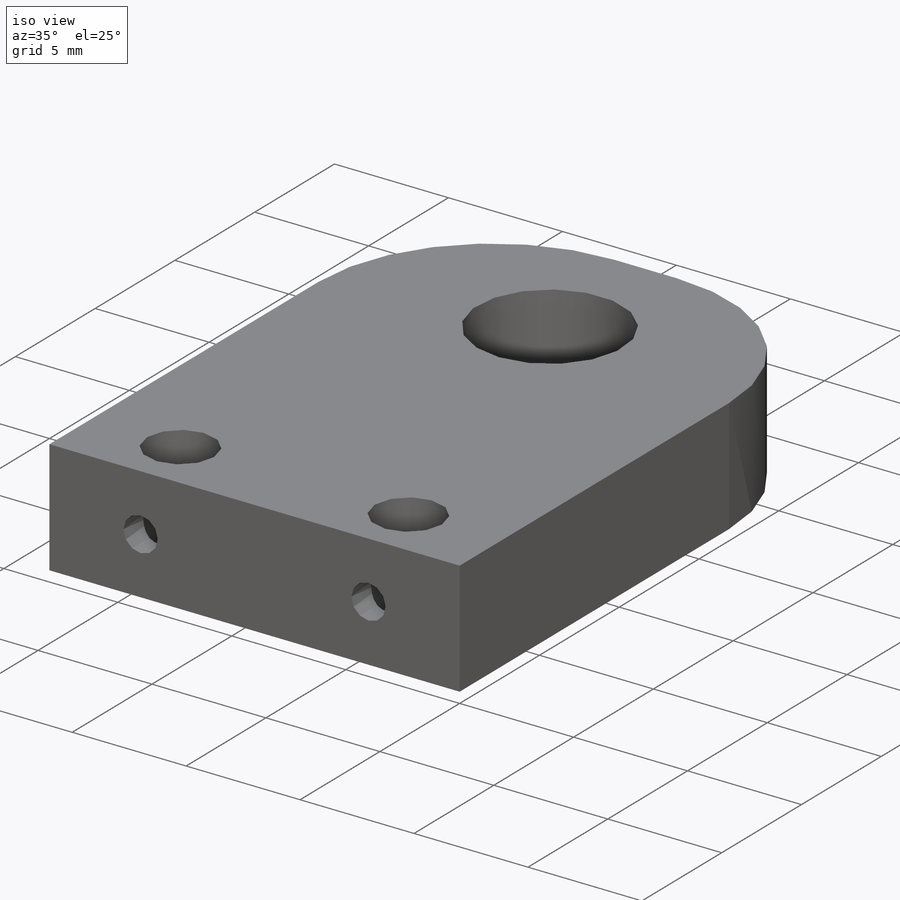
[diagram: iso view]
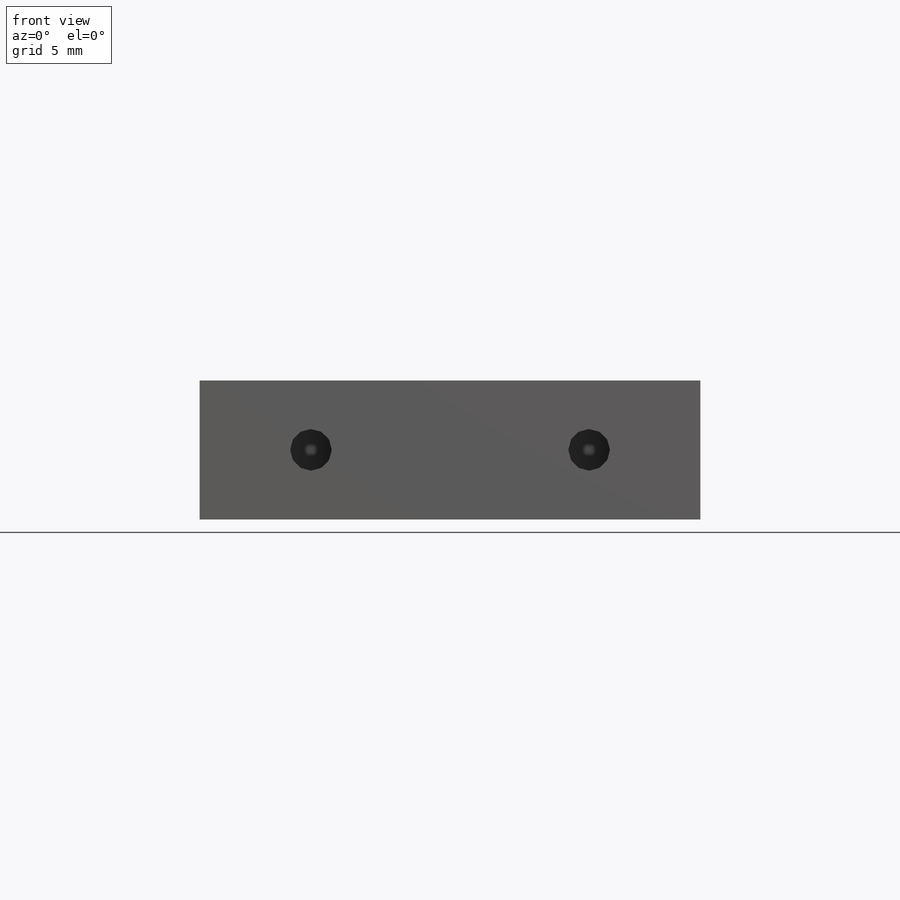
[diagram: front view]
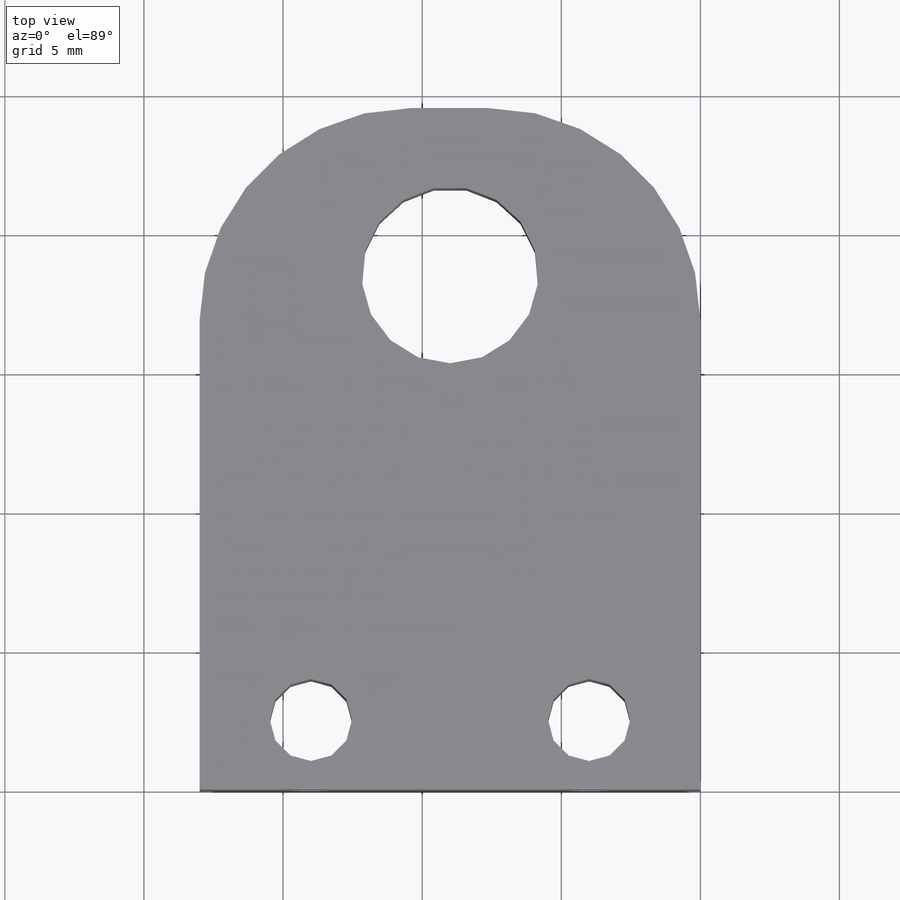
[diagram: top view]
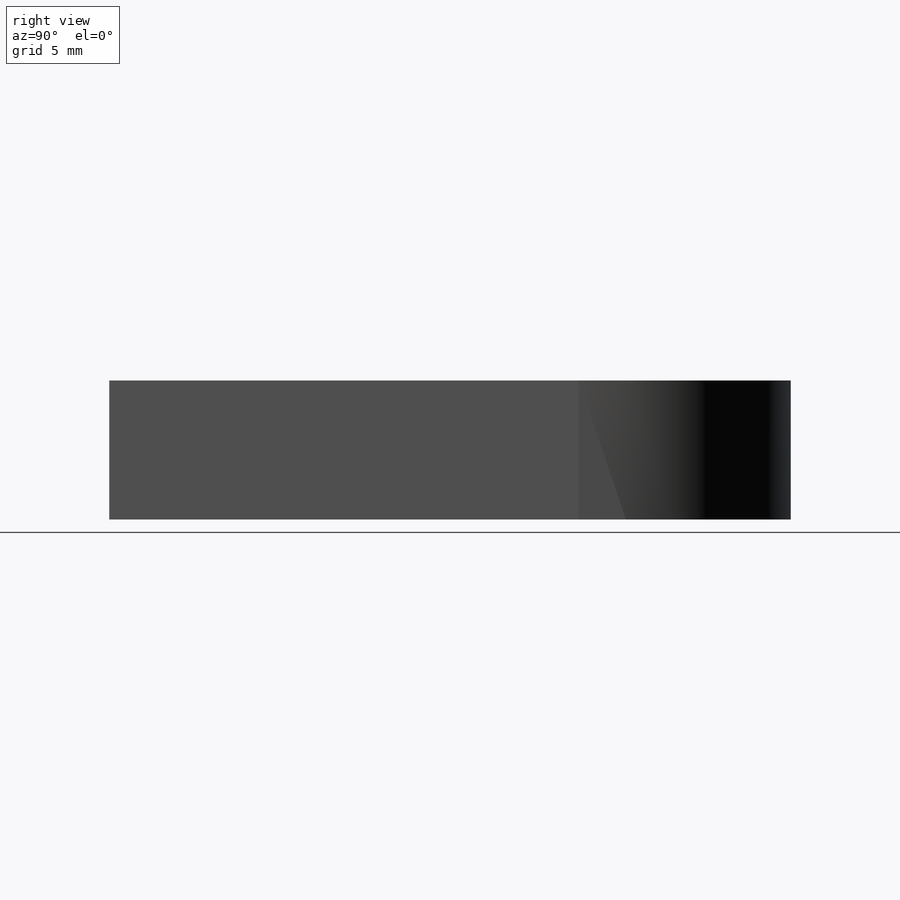
[diagram: right view]
SOLIDWORKS PART (.sldprt)
format: sldprt  version: not decoded by parser v0  size: 253,952 bytes
history: native  units: mm
features: sketch x5, cut_extrude x2, material x1, extrude x1, plane x1, mirror x1, fillet x1, hole x1 + 1 further entry (+13 scaffold rows collapsed)
feature tree (27):
  scaffold x13  (default folders/planes/origin — collapsed)
  material  "6061-T6 (SS)"
  "Origin"  ID=-1
  sketch  "Sketch1"  dims[D1=18.0mm D2=24.5mm]
  extrude  "Extrude1"  Depth=5mm
  plane  "Plane1"
  sketch  "Sketch3"  dims[D1=2.9464mm D2=2.5mm D3=5.0mm]
  cut_extrude  "Extrude2"  [1 undecoded]
  sketch  "Sketch4"  dims[D1=1.5mm D2=2.5mm D3=5.0mm]
  cut_extrude  "Extrude3"  Depth=2.46mm
  mirror  "Mirror1"
  fillet  "Fillet1"  Radius=7.62mm
  hole  "1/4-20 Tapped Hole1"  Diameter=5.1054mm Depth=16.51mm
  sketch  "3DSketch1"  dims[c1.D1=~6.251465mm c1.D2=~6.251465mm c2.D1=18.5mm]
  sketch  "Sketch5"  dims[hole-wizard template sketch: 34 standard entries collapsed; hole parameters above]
decode coverage: 9 of 11 modeling features carry decoded parameters; 1 rows unclassified (native names shown)
note: ~ marks probable driven/reference dimensions
note: 1 parameter value undecoded
note: suppression state not decoded; provenance and decode notes live in map.json
